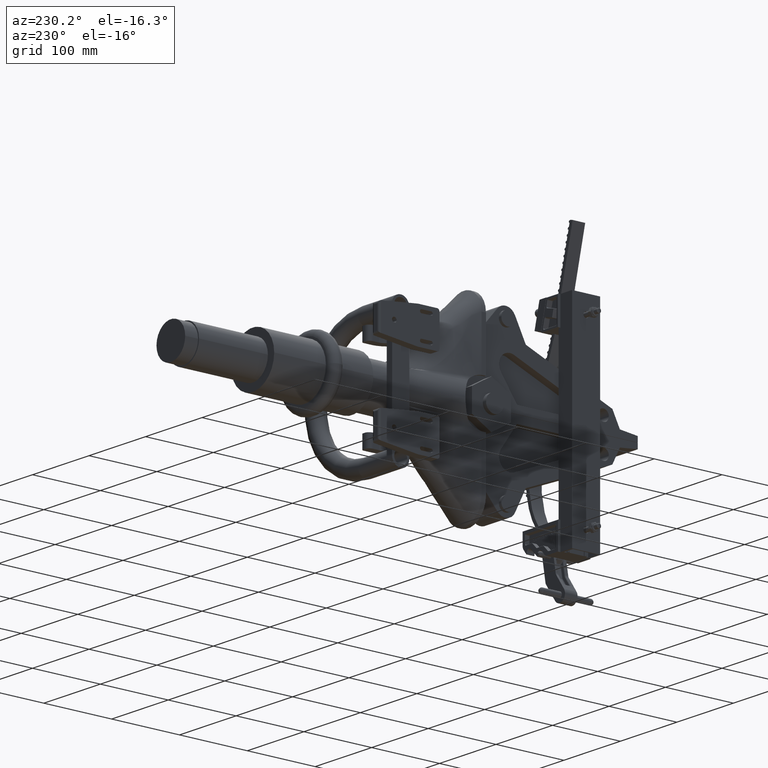
[diagram: clean part render]
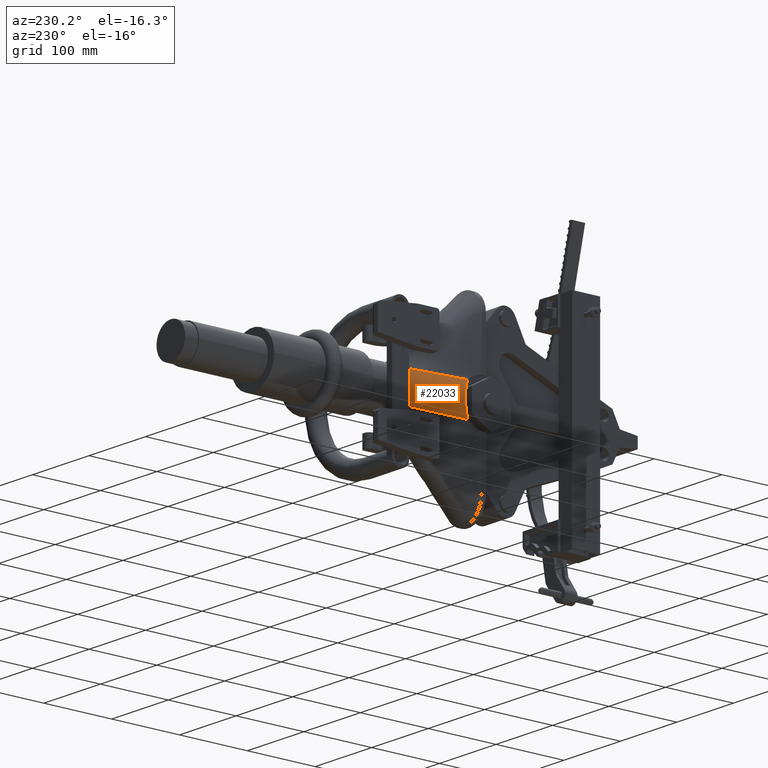
[diagram: same view with one face highlighted and labeled with its STEP entity id]
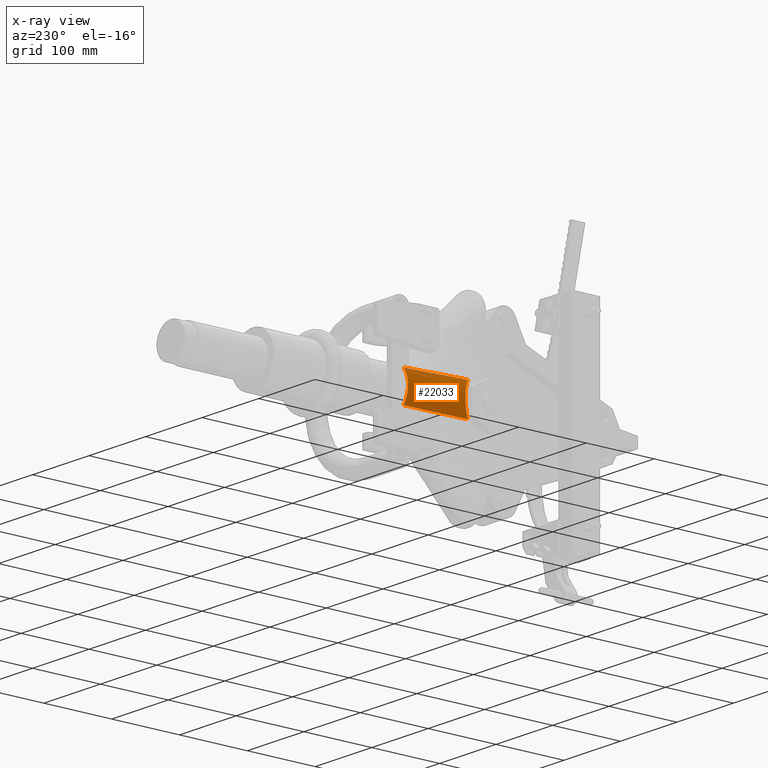
[diagram: x-ray of the same camera — body ghosted, the highlighted face saturated]
A machine part, auxiliary view. The second image highlights one B-rep face of the part: STEP entity #22033.
The next image is the same camera in x-ray: the body ghosted, the highlighted face saturated — about 0% of this face is hidden behind the body in this view.
In plain terms, the highlighted face is a freeform B-spline surface patch.
Its self-contained STEP definition (entity closure, byte-faithful):
#6969 = B_SPLINE_SURFACE_WITH_KNOTS ( 'NONE', 3, 3, ( 
 ( #40463, #40258, #40261, #40465, #40466, #40467, #40468 ),
 ( #40469, #40470, #40471, #40472, #40473, #40474, #40475 ),
 ( #40476, #40477, #40478, #40479, #40480, #40481, #40482 ),
 ( #40483, #40484, #40485, #40486, #40487, #40488, #40489 ),
 ( #40490, #40491, #40492, #40493, #40494, #40495, #40496 ),
 ( #40497, #40498, #40499, #40500, #40501, #40502, #40503 ),
 ( #40504, #40505, #40506, #40507, #40508, #40509, #40510 ),
 ( #40511, #40512, #40513, #40514, #40515, #40516, #40517 ),
 ( #40518, #40519, #40520, #40521, #40522, #40523, #40524 ),
 ( #40525, #40526, #40527, #40528, #40529, #40530, #40531 ),
 ( #40532, #40533, #40534, #40535, #40536, #40537, #40538 ) ),
 .UNSPECIFIED., .F., .F., .F.,
 ( 4, 1, 1, 1, 1, 1, 1, 1, 4 ),
 ( 4, 3, 4 ),
 ( 0.0000000000000000000, 0.1250000000000000000, 0.2500000000000000000, 0.3750000000000000000, 0.5000000000000000000, 0.6250000000000000000, 0.7500000000000000000, 0.8750000000000000000, 1.000000000000000000 ),
 ( 0.1814216524969579100, 1.000000000000000000, 1.005140607936201500 ),
 .UNSPECIFIED. ) ;
#7985 = ORIENTED_EDGE ( 'NONE', *, *, #27143, .F. ) ;
#7986 = ORIENTED_EDGE ( 'NONE', *, *, #27140, .T. ) ;
#7987 = ORIENTED_EDGE ( 'NONE', *, *, #26978, .T. ) ;
#7988 = ORIENTED_EDGE ( 'NONE', *, *, #27103, .T. ) ;
#7989 = ORIENTED_EDGE ( 'NONE', *, *, #27145, .T. ) ;
#11544 = CARTESIAN_POINT ( 'NONE',  ( 1.220404281933973500E-012, -12.62489258679072200, 1.375000000000000000 ) ) ;
#11554 = CARTESIAN_POINT ( 'NONE',  ( -0.9231804549859552500, -16.18500719516051600, 1.280291559779656300 ) ) ;
#11585 = CARTESIAN_POINT ( 'NONE',  ( 0.8785852166543837200, -12.62550000000000100, 1.057692307373164800 ) ) ;
#13195 = FACE_OUTER_BOUND ( 'NONE', #25282, .T. ) ;
#16696 = VERTEX_POINT ( 'NONE', #11544 ) ;
#16706 = VERTEX_POINT ( 'NONE', #11554 ) ;
#16737 = VERTEX_POINT ( 'NONE', #11585 ) ;
#22033 = ADVANCED_FACE ( 'NONE', ( #13195 ), #6969, .T. ) ;
#25282 = EDGE_LOOP ( 'NONE', ( #7985, #7986, #7987, #7988, #7989 ) ) ;
#25548 = CARTESIAN_POINT ( 'NONE',  ( 0.8785852166543837200, -12.62550000000000100, 1.057692307373164800 ) ) ;
#25553 = CARTESIAN_POINT ( 'NONE',  ( 0.8477507870135311300, -12.62550000025478200, 1.083305308297511000 ) ) ;
#25554 = CARTESIAN_POINT ( 'NONE',  ( 0.8160276594466014900, -12.62564139063792400, 1.107382431430984600 ) ) ;
#25555 = CARTESIAN_POINT ( 'NONE',  ( 0.7508617619780440000, -12.62577721259891700, 1.152563926566819500 ) ) ;
#25556 = CARTESIAN_POINT ( 'NONE',  ( 0.7174188533534743300, -12.62577271187110600, 1.173668060830290700 ) ) ;
#25557 = CARTESIAN_POINT ( 'NONE',  ( 0.6488302444160015700, -12.62563708757778100, 1.212932744257166200 ) ) ;
#25558 = CARTESIAN_POINT ( 'NONE',  ( 0.6136845528767174200, -12.62550494751471000, 1.231093306635229400 ) ) ;
#25559 = CARTESIAN_POINT ( 'NONE',  ( 0.5596729874331206600, -12.62526774091328900, 1.256099025617835700 ) ) ;
#25560 = CARTESIAN_POINT ( 'NONE',  ( 0.5414533259080279700, -12.62518575052285600, 1.264061229901682500 ) ) ;
#25561 = CARTESIAN_POINT ( 'NONE',  ( 0.5045759412440483600, -12.62506979361078400, 1.279228523992137300 ) ) ;
#25562 = CARTESIAN_POINT ( 'NONE',  ( 0.4858776092910080400, -12.62503588230959300, 1.286447986284686700 ) ) ;
#25563 = CARTESIAN_POINT ( 'NONE',  ( 0.4294117473076053400, -12.62513295511932500, 1.306840633657870400 ) ) ;
#25564 = CARTESIAN_POINT ( 'NONE',  ( 0.3914391801599486600, -12.62544579207687300, 1.318700171072509900 ) ) ;
#25565 = CARTESIAN_POINT ( 'NONE',  ( 0.3148565645033442100, -12.62590157320970100, 1.339051946990896600 ) ) ;
#25566 = CARTESIAN_POINT ( 'NONE',  ( 0.2762464698969011600, -12.62604555650760000, 1.347543943501894800 ) ) ;
#25567 = CARTESIAN_POINT ( 'NONE',  ( 0.1983936143702661200, -12.62597066352215500, 1.361185793922431400 ) ) ;
#25568 = CARTESIAN_POINT ( 'NONE',  ( 0.1591508622494361100, -12.62575158551406500, 1.366335694020155200 ) ) ;
#25569 = CARTESIAN_POINT ( 'NONE',  ( 0.09980514348663288600, -12.62534767766002700, 1.371516766124527800 ) ) ;
#25570 = CARTESIAN_POINT ( 'NONE',  ( 0.07994285958529091800, -12.62520408052630700, 1.372819237812000100 ) ) ;
#25571 = CARTESIAN_POINT ( 'NONE',  ( 0.04005493170798310500, -12.62497645337592700, 1.374561429311641300 ) ) ;
#25572 = CARTESIAN_POINT ( 'NONE',  ( 0.01998300535973331100, -12.62489258679073400, 1.374999999999983300 ) ) ;
#25573 = CARTESIAN_POINT ( 'NONE',  ( 1.220404281933973500E-012, -12.62489258679072200, 1.375000000000000000 ) ) ;
#25764 = CARTESIAN_POINT ( 'NONE',  ( 1.220404281933973500E-012, -12.62489258679072200, 1.375000000000000000 ) ) ;
#25787 = CARTESIAN_POINT ( 'NONE',  ( -0.04003107011063537800, -12.62489258679072400, 1.375000000000036200 ) ) ;
#25788 = CARTESIAN_POINT ( 'NONE',  ( -0.07979784336991256600, -12.62521137445003000, 1.373255323782395500 ) ) ;
#25789 = CARTESIAN_POINT ( 'NONE',  ( -0.1588177907840958000, -12.62574945090780400, 1.366372858861606600 ) ) ;
#25790 = CARTESIAN_POINT ( 'NONE',  ( -0.1980709313713126300, -12.62596965185556300, 1.361234851896180100 ) ) ;
#25791 = CARTESIAN_POINT ( 'NONE',  ( -0.2760663717884438400, -12.62604608000198400, 1.347582937795918100 ) ) ;
#25792 = CARTESIAN_POINT ( 'NONE',  ( -0.3148086827883666000, -12.62590202454980600, 1.339069103369835200 ) ) ;
#25793 = CARTESIAN_POINT ( 'NONE',  ( -0.3725322759292319400, -12.62555823279063100, 1.323722439176977700 ) ) ;
#25794 = CARTESIAN_POINT ( 'NONE',  ( -0.3917084017349561400, -12.62542596479994100, 1.318176965035166500 ) ) ;
#25795 = CARTESIAN_POINT ( 'NONE',  ( -0.4299282034530111900, -12.62519549760516400, 1.306211209190436500 ) ) ;
#25796 = CARTESIAN_POINT ( 'NONE',  ( -0.4489770449229369400, -12.62509768407171700, 1.299786006995144100 ) ) ;
#25797 = CARTESIAN_POINT ( 'NONE',  ( -0.5053314584097841100, -12.62500580358355200, 1.279398812151201700 ) ) ;
#25798 = CARTESIAN_POINT ( 'NONE',  ( -0.5420478307217133600, -12.62519034967179000, 1.264267977417391100 ) ) ;
#25799 = CARTESIAN_POINT ( 'NONE',  ( -0.6138251921895809800, -12.62550555060033600, 1.231019091219384800 ) ) ;
#25800 = CARTESIAN_POINT ( 'NONE',  ( -0.6488860601770867200, -12.62563719862746000, 1.212900822319136400 ) ) ;
#25801 = CARTESIAN_POINT ( 'NONE',  ( -0.7173646502373528500, -12.62577260401019600, 1.173699059582318700 ) ) ;
#25802 = CARTESIAN_POINT ( 'NONE',  ( -0.7507823937849210600, -12.62577728802745400, 1.152615605629189200 ) ) ;
#25803 = CARTESIAN_POINT ( 'NONE',  ( -0.8159503198404968200, -12.62564164161138300, 1.107439394598887000 ) ) ;
#25804 = CARTESIAN_POINT ( 'NONE',  ( -0.8477006700685663100, -12.62550000044320700, 1.083346938572607800 ) ) ;
#25805 = CARTESIAN_POINT ( 'NONE',  ( -0.8785852169374418500, -12.62550000000000100, 1.057692307138038900 ) ) ;
#25937 = CARTESIAN_POINT ( 'NONE',  ( 0.9231804549859538000, -16.18500719516051600, 1.280291559779657600 ) ) ;
#25953 = CARTESIAN_POINT ( 'NONE',  ( 0.9231804549859538000, -16.18500719516051600, 1.280291559779657600 ) ) ;
#25954 = CARTESIAN_POINT ( 'NONE',  ( 0.9146680611093301900, -15.88821024667005100, 1.265517660781323700 ) ) ;
#25955 = CARTESIAN_POINT ( 'NONE',  ( 0.9065403585586617700, -15.59141783278990100, 1.250464512425404400 ) ) ;
#25956 = CARTESIAN_POINT ( 'NONE',  ( 0.8916801048300048200, -14.99785062392669300, 1.219322844048359000 ) ) ;
#25957 = CARTESIAN_POINT ( 'NONE',  ( 0.8849234490370229100, -14.70106912320637000, 1.203255057614465800 ) ) ;
#25958 = CARTESIAN_POINT ( 'NONE',  ( 0.8741597327377614900, -14.10759233167302700, 1.169012950404908000 ) ) ;
#25959 = CARTESIAN_POINT ( 'NONE',  ( 0.8700898654464889200, -13.81087156862776800, 1.150902442291134000 ) ) ;
#25960 = CARTESIAN_POINT ( 'NONE',  ( 0.8685209036286967200, -13.36601297284045300, 1.120041708863345600 ) ) ;
#25961 = CARTESIAN_POINT ( 'NONE',  ( 0.8687763728005083500, -13.21776682449254600, 1.109119662724301200 ) ) ;
#25962 = CARTESIAN_POINT ( 'NONE',  ( 0.8716427666466669600, -12.92144422562158600, 1.085233442527570000 ) ) ;
#25963 = CARTESIAN_POINT ( 'NONE',  ( 0.8742637598029120400, -12.77336365141384000, 1.072267391470826900 ) ) ;
#25964 = CARTESIAN_POINT ( 'NONE',  ( 0.8785852166543837200, -12.62550000000000100, 1.057692307373164800 ) ) ;
#25965 = CARTESIAN_POINT ( 'NONE',  ( -0.8785852169374418500, -12.62550000000000100, 1.057692307138038900 ) ) ;
#25966 = CARTESIAN_POINT ( 'NONE',  ( 0.8658566129816339700, -16.12839909399539500, 1.317635039673407600 ) ) ;
#25967 = CARTESIAN_POINT ( 'NONE',  ( 0.8033435416190347600, -16.07693551255698600, 1.353663658125053000 ) ) ;
#25968 = CARTESIAN_POINT ( 'NONE',  ( 0.7004979700746246700, -16.00755402959553600, 1.403659947260243100 ) ) ;
#25969 = CARTESIAN_POINT ( 'NONE',  ( 0.6644997479005829700, -15.98565440321394600, 1.419723162110736200 ) ) ;
#25970 = CARTESIAN_POINT ( 'NONE',  ( 0.5905669625448420900, -15.94546104667372300, 1.449560805454926700 ) ) ;
#25971 = CARTESIAN_POINT ( 'NONE',  ( 0.5525434510321585200, -15.92708349944155600, 1.463393496821007800 ) ) ;
#25972 = CARTESIAN_POINT ( 'NONE',  ( 0.4742592900347742400, -15.89385096189091900, 1.488607406842891200 ) ) ;
#25973 = CARTESIAN_POINT ( 'NONE',  ( 0.4339999323476926300, -15.87899567574387300, 1.499992341298605100 ) ) ;
#25974 = CARTESIAN_POINT ( 'NONE',  ( 0.3717936875785694500, -15.85952140558850100, 1.515008713712932900 ) ) ;
#25975 = CARTESIAN_POINT ( 'NONE',  ( 0.3507547484741269600, -15.85349917827310600, 1.519670017539577600 ) ) ;
#25976 = CARTESIAN_POINT ( 'NONE',  ( 0.3080368219379377400, -15.84243605414957300, 1.528256216129937100 ) ) ;
#25977 = CARTESIAN_POINT ( 'NONE',  ( 0.2864985109640529900, -15.83743426099666300, 1.532150746042479300 ) ) ;
#25978 = CARTESIAN_POINT ( 'NONE',  ( 0.1786069521997000800, -15.81522324074200700, 1.549476973259045400 ) ) ;
#25979 = CARTESIAN_POINT ( 'NONE',  ( 0.09097093996180703700, -15.80614016677957100, 1.556668975124613900 ) ) ;
#25980 = CARTESIAN_POINT ( 'NONE',  ( -0.02029793277741463400, -15.80597452846754100, 1.556799929945446700 ) ) ;
#25981 = CARTESIAN_POINT ( 'NONE',  ( -0.04263869740503958800, -15.80650624367589300, 1.556379402411046200 ) ) ;
#25982 = CARTESIAN_POINT ( 'NONE',  ( -0.08749864825572291300, -15.80873066428212100, 1.554625255778513600 ) ) ;
#25983 = CARTESIAN_POINT ( 'NONE',  ( -0.1099065991930627700, -15.81042163833981800, 1.553293041787882700 ) ) ;
#25984 = CARTESIAN_POINT ( 'NONE',  ( -0.1764131804194847800, -15.81714126537429600, 1.548010719595738700 ) ) ;
#25985 = CARTESIAN_POINT ( 'NONE',  ( -0.2200642773403716800, -15.82382384768031400, 1.542768725109574100 ) ) ;
#25986 = CARTESIAN_POINT ( 'NONE',  ( -0.3060634157108820800, -15.84139874323257400, 1.529057338043561700 ) ) ;
#25987 = CARTESIAN_POINT ( 'NONE',  ( -0.3484111223176615800, -15.85229155269268700, 1.520586363359860200 ) ) ;
#25988 = CARTESIAN_POINT ( 'NONE',  ( -0.4109812697291847500, -15.87174811126905600, 1.505579568833681900 ) ) ;
#25989 = CARTESIAN_POINT ( 'NONE',  ( -0.4317174870750125100, -15.87877121859865400, 1.500180410878650100 ) ) ;
#25990 = CARTESIAN_POINT ( 'NONE',  ( -0.4724084265618333500, -15.89368234774026200, 1.488766722041970200 ) ) ;
#25991 = CARTESIAN_POINT ( 'NONE',  ( -0.4924175851744375700, -15.90158505244793100, 1.482740775067500300 ) ) ;
#25993 = CARTESIAN_POINT ( 'NONE',  ( -0.5514839082685566400, -15.92658479914524200, 1.463769367909798100 ) ) ;
#25995 = CARTESIAN_POINT ( 'NONE',  ( -0.5895818684536487900, -15.94496901683421600, 1.449929689909202200 ) ) ;
#25996 = CARTESIAN_POINT ( 'NONE',  ( -0.6634119297596197100, -15.98502070509449700, 1.420190065238521800 ) ) ;
#25998 = CARTESIAN_POINT ( 'NONE',  ( -0.6991888369034756600, -16.00671933451771900, 1.404267181700400400 ) ) ;
#26000 = CARTESIAN_POINT ( 'NONE',  ( -0.8028555661914547100, -16.07651152285171000, 1.353957933608399100 ) ) ;
#26001 = CARTESIAN_POINT ( 'NONE',  ( -0.8656801385619760100, -16.12822482302100700, 1.317750003512393200 ) ) ;
#26003 = CARTESIAN_POINT ( 'NONE',  ( -0.9231804549859552500, -16.18500719516051600, 1.280291559779656300 ) ) ;
#26007 = CARTESIAN_POINT ( 'NONE',  ( -0.8742638484517248900, -12.77336061060735500, 1.072267091919434800 ) ) ;
#26009 = CARTESIAN_POINT ( 'NONE',  ( -0.8716430244856578900, -12.92142640965947300, 1.085231931423468600 ) ) ;
#26011 = CARTESIAN_POINT ( 'NONE',  ( -0.8687764236077838400, -13.21775273411434500, 1.109118601887333800 ) ) ;
#26012 = CARTESIAN_POINT ( 'NONE',  ( -0.8685209013857091400, -13.36599884340101400, 1.120040689357219900 ) ) ;
#26014 = CARTESIAN_POINT ( 'NONE',  ( -0.8700897282808092200, -13.81085966220565300, 1.150901694950538600 ) ) ;
#26016 = CARTESIAN_POINT ( 'NONE',  ( -0.8741595724578323800, -14.10758191348118600, 1.169012327172515900 ) ) ;
#26018 = CARTESIAN_POINT ( 'NONE',  ( -0.8849232853737495400, -14.70106168016143200, 1.203254650298081200 ) ) ;
#26019 = CARTESIAN_POINT ( 'NONE',  ( -0.8916799629645197900, -14.99784466936574700, 1.219322526271213700 ) ) ;
#26021 = CARTESIAN_POINT ( 'NONE',  ( -0.9065402768076681300, -15.59141485537186100, 1.250464361583712800 ) ) ;
#26023 = CARTESIAN_POINT ( 'NONE',  ( -0.9146680184112622200, -15.88820875793995700, 1.265517586675614500 ) ) ;
#26024 = CARTESIAN_POINT ( 'NONE',  ( -0.9231804549859552500, -16.18500719516051600, 1.280291559779656300 ) ) ;
#26978 = EDGE_CURVE ( 'NONE', #16737, #16696, #44101, .T. ) ;
#27103 = EDGE_CURVE ( 'NONE', #16696, #37473, #44105, .T. ) ;
#27140 = EDGE_CURVE ( 'NONE', #42235, #16737, #44113, .T. ) ;
#27143 = EDGE_CURVE ( 'NONE', #42235, #16706, #44114, .T. ) ;
#27145 = EDGE_CURVE ( 'NONE', #37473, #16706, #44115, .T. ) ;
#34667 = CARTESIAN_POINT ( 'NONE',  ( -0.8785852169374418500, -12.62550000000000100, 1.057692307138038900 ) ) ;
#34750 = CARTESIAN_POINT ( 'NONE',  ( 0.9231804549859538000, -16.18500719516051600, 1.280291559779657600 ) ) ;
#37473 = VERTEX_POINT ( 'NONE', #34667 ) ;
#40258 = CARTESIAN_POINT ( 'NONE',  ( -0.9657598628732155800, -15.01274732076803900, 1.162638249679878200 ) ) ;
#40261 = CARTESIAN_POINT ( 'NONE',  ( -0.9221725395716977600, -13.81912366038402200, 1.110165278686093400 ) ) ;
#40463 = CARTESIAN_POINT ( 'NONE',  ( -1.009347186174733600, -16.20637098115206200, 1.215111220673663200 ) ) ;
#40465 = CARTESIAN_POINT ( 'NONE',  ( -0.8785852162701799400, -12.62550000000000100, 1.057692307692308400 ) ) ;
#40466 = CARTESIAN_POINT ( 'NONE',  ( -0.8783114912922775900, -12.61800413686103000, 1.057362781542551900 ) ) ;
#40467 = CARTESIAN_POINT ( 'NONE',  ( -0.8780377663143752500, -12.61050827372206000, 1.057033255392795200 ) ) ;
#40468 = CARTESIAN_POINT ( 'NONE',  ( -0.8777640413364730100, -12.60301241058308900, 1.056703729243038800 ) ) ;
#40469 = CARTESIAN_POINT ( 'NONE',  ( -0.9391583215952528100, -16.20637098115206200, 1.273414470416366800 ) ) ;
#40470 = CARTESIAN_POINT ( 'NONE',  ( -0.8986020115808346400, -15.01274732076803900, 1.218423750692637600 ) ) ;
#40471 = CARTESIAN_POINT ( 'NONE',  ( -0.8580457015664162400, -13.81912366038402200, 1.163433030968908300 ) ) ;
#40472 = CARTESIAN_POINT ( 'NONE',  ( -0.8174893915519981800, -12.62550000000000100, 1.108442311245179100 ) ) ;
#40473 = CARTESIAN_POINT ( 'NONE',  ( -0.8172347011002422100, -12.61800413686103000, 1.108096973830511800 ) ) ;
#40474 = CARTESIAN_POINT ( 'NONE',  ( -0.8169800106484862400, -12.61050827372206000, 1.107751636415844600 ) ) ;
#40475 = CARTESIAN_POINT ( 'NONE',  ( -0.8167253201967302800, -12.60301241058308900, 1.107406299001177500 ) ) ;
#40476 = CARTESIAN_POINT ( 'NONE',  ( -0.7886521782805440100, -16.20637098115203800, 1.377822286409625200 ) ) ;
#40477 = CARTESIAN_POINT ( 'NONE',  ( -0.7545903753331352200, -15.01274732076803200, 1.318311990713590700 ) ) ;
#40478 = CARTESIAN_POINT ( 'NONE',  ( -0.7205285723857261000, -13.81912366038402800, 1.258801695017555800 ) ) ;
#40479 = CARTESIAN_POINT ( 'NONE',  ( -0.6864667694383170800, -12.62550000000001800, 1.199291399321521100 ) ) ;
#40480 = CARTESIAN_POINT ( 'NONE',  ( -0.6862528639824899700, -12.61800413686104800, 1.198917679323583400 ) ) ;
#40481 = CARTESIAN_POINT ( 'NONE',  ( -0.6860389585266629700, -12.61050827372207700, 1.198543959325645500 ) ) ;
#40482 = CARTESIAN_POINT ( 'NONE',  ( -0.6858250530708359700, -12.60301241058310700, 1.198170239327707600 ) ) ;
#40483 = CARTESIAN_POINT ( 'NONE',  ( -0.5392755564040087000, -16.20637098115208700, 1.493185794188727000 ) ) ;
#40484 = CARTESIAN_POINT ( 'NONE',  ( -0.5159945540322292700, -15.01274732076805500, 1.428721862255476300 ) ) ;
#40485 = CARTESIAN_POINT ( 'NONE',  ( -0.4927135516604498900, -13.81912366038402200, 1.364257930322225500 ) ) ;
#40486 = CARTESIAN_POINT ( 'NONE',  ( -0.4694325492886705600, -12.62549999999999200, 1.299793998388974800 ) ) ;
#40487 = CARTESIAN_POINT ( 'NONE',  ( -0.4692863464164345700, -12.61800413686102100, 1.299389169943285100 ) ) ;
#40488 = CARTESIAN_POINT ( 'NONE',  ( -0.4691401435441987000, -12.61050827372205100, 1.298984341497595500 ) ) ;
#40489 = CARTESIAN_POINT ( 'NONE',  ( -0.4689939406719627100, -12.60301241058308000, 1.298579513051905800 ) ) ;
#40490 = CARTESIAN_POINT ( 'NONE',  ( -0.2737321860487902900, -16.20637098115204800, 1.563780366402054900 ) ) ;
#40491 = CARTESIAN_POINT ( 'NONE',  ( -0.2619056858802846800, -15.01274732076803200, 1.496227386739130900 ) ) ;
#40492 = CARTESIAN_POINT ( 'NONE',  ( -0.2500791857117790100, -13.81912366038401500, 1.428674407076206500 ) ) ;
#40493 = CARTESIAN_POINT ( 'NONE',  ( -0.2382526855432733900, -12.62550000000000100, 1.361121427413282300 ) ) ;
#40494 = CARTESIAN_POINT ( 'NONE',  ( -0.2381784160481062700, -12.61800413686103000, 1.360697199989690600 ) ) ;
#40495 = CARTESIAN_POINT ( 'NONE',  ( -0.2381041465529392700, -12.61050827372206000, 1.360272972566098700 ) ) ;
#40496 = CARTESIAN_POINT ( 'NONE',  ( -0.2380298770577722600, -12.60301241058308900, 1.359848745142507000 ) ) ;
#40497 = CARTESIAN_POINT ( 'NONE',  ( 2.978959034190239100E-019, -16.20637098115205500, 1.587588560751680400 ) ) ;
#40498 = CARTESIAN_POINT ( 'NONE',  ( -2.046900022558737300E-016, -15.01274732076804400, 1.519056156972670200 ) ) ;
#40499 = CARTESIAN_POINT ( 'NONE',  ( -4.096779004151665200E-016, -13.81912366038403100, 1.450523753193660100 ) ) ;
#40500 = CARTESIAN_POINT ( 'NONE',  ( -6.146657985744592700E-016, -12.62550000000001700, 1.381991349414649900 ) ) ;
#40501 = CARTESIAN_POINT ( 'NONE',  ( -6.159531065264924100E-016, -12.61800413686104600, 1.381560971284287600 ) ) ;
#40502 = CARTESIAN_POINT ( 'NONE',  ( -6.172404144785257400E-016, -12.61050827372207400, 1.381130593153925500 ) ) ;
#40503 = CARTESIAN_POINT ( 'NONE',  ( -6.185277224305589700E-016, -12.60301241058310300, 1.380700215023563000 ) ) ;
#40504 = CARTESIAN_POINT ( 'NONE',  ( 0.2737321860487902400, -16.20637098115207300, 1.563780366402057500 ) ) ;
#40505 = CARTESIAN_POINT ( 'NONE',  ( 0.2619056858802842300, -15.01274732076805000, 1.496227386739132200 ) ) ;
#40506 = CARTESIAN_POINT ( 'NONE',  ( 0.2500791857117783400, -13.81912366038402200, 1.428674407076207000 ) ) ;
#40507 = CARTESIAN_POINT ( 'NONE',  ( 0.2382526855432723600, -12.62549999999999700, 1.361121427413281900 ) ) ;
#40508 = CARTESIAN_POINT ( 'NONE',  ( 0.2381784160481053600, -12.61800413686102700, 1.360697199989690400 ) ) ;
#40509 = CARTESIAN_POINT ( 'NONE',  ( 0.2381041465529383500, -12.61050827372205600, 1.360272972566098200 ) ) ;
#40510 = CARTESIAN_POINT ( 'NONE',  ( 0.2380298770577713200, -12.60301241058308500, 1.359848745142506300 ) ) ;
#40511 = CARTESIAN_POINT ( 'NONE',  ( 0.5392755564040084800, -16.20637098115204800, 1.493185794188724500 ) ) ;
#40512 = CARTESIAN_POINT ( 'NONE',  ( 0.5159945540322289400, -15.01274732076802600, 1.428721862255474700 ) ) ;
#40513 = CARTESIAN_POINT ( 'NONE',  ( 0.4927135516604493300, -13.81912366038400500, 1.364257930322224400 ) ) ;
#40514 = CARTESIAN_POINT ( 'NONE',  ( 0.4694325492886697900, -12.62549999999998600, 1.299793998388974400 ) ) ;
#40515 = CARTESIAN_POINT ( 'NONE',  ( 0.4692863464164337400, -12.61800413686101600, 1.299389169943284900 ) ) ;
#40516 = CARTESIAN_POINT ( 'NONE',  ( 0.4691401435441978600, -12.61050827372204200, 1.298984341497595000 ) ) ;
#40517 = CARTESIAN_POINT ( 'NONE',  ( 0.4689939406719619300, -12.60301241058307100, 1.298579513051905300 ) ) ;
#40518 = CARTESIAN_POINT ( 'NONE',  ( 0.7886521782805440100, -16.20637098115206200, 1.377822286409627000 ) ) ;
#40519 = CARTESIAN_POINT ( 'NONE',  ( 0.7545903753331345600, -15.01274732076804600, 1.318311990713591800 ) ) ;
#40520 = CARTESIAN_POINT ( 'NONE',  ( 0.7205285723857252100, -13.81912366038403300, 1.258801695017557100 ) ) ;
#40521 = CARTESIAN_POINT ( 'NONE',  ( 0.6864667694383158600, -12.62550000000001800, 1.199291399321522400 ) ) ;
#40522 = CARTESIAN_POINT ( 'NONE',  ( 0.6862528639824887500, -12.61800413686104800, 1.198917679323584700 ) ) ;
#40523 = CARTESIAN_POINT ( 'NONE',  ( 0.6860389585266617500, -12.61050827372207700, 1.198543959325646800 ) ) ;
#40524 = CARTESIAN_POINT ( 'NONE',  ( 0.6858250530708346300, -12.60301241058310700, 1.198170239327709200 ) ) ;
#40525 = CARTESIAN_POINT ( 'NONE',  ( 0.9391583215952524800, -16.20637098115206200, 1.273414470416367500 ) ) ;
#40526 = CARTESIAN_POINT ( 'NONE',  ( 0.8986020115808341900, -15.01274732076803900, 1.218423750692637900 ) ) ;
#40527 = CARTESIAN_POINT ( 'NONE',  ( 0.8580457015664161300, -13.81912366038402200, 1.163433030968908500 ) ) ;
#40528 = CARTESIAN_POINT ( 'NONE',  ( 0.8174893915519979600, -12.62550000000000100, 1.108442311245179100 ) ) ;
#40529 = CARTESIAN_POINT ( 'NONE',  ( 0.8172347011002421000, -12.61800413686103000, 1.108096973830512000 ) ) ;
#40530 = CARTESIAN_POINT ( 'NONE',  ( 0.8169800106484862400, -12.61050827372206000, 1.107751636415845100 ) ) ;
#40531 = CARTESIAN_POINT ( 'NONE',  ( 0.8167253201967302800, -12.60301241058308900, 1.107406299001177900 ) ) ;
#40532 = CARTESIAN_POINT ( 'NONE',  ( 1.009347186174733400, -16.20637098115206200, 1.215111220673663400 ) ) ;
#40533 = CARTESIAN_POINT ( 'NONE',  ( 0.9657598628732154700, -15.01274732076803900, 1.162638249679878600 ) ) ;
#40534 = CARTESIAN_POINT ( 'NONE',  ( 0.9221725395716975400, -13.81912366038402200, 1.110165278686093600 ) ) ;
#40535 = CARTESIAN_POINT ( 'NONE',  ( 0.8785852162701798300, -12.62550000000000100, 1.057692307692308600 ) ) ;
#40536 = CARTESIAN_POINT ( 'NONE',  ( 0.8783114912922775900, -12.61800413686103000, 1.057362781542551900 ) ) ;
#40537 = CARTESIAN_POINT ( 'NONE',  ( 0.8780377663143752500, -12.61050827372206000, 1.057033255392795700 ) ) ;
#40538 = CARTESIAN_POINT ( 'NONE',  ( 0.8777640413364730100, -12.60301241058308900, 1.056703729243039000 ) ) ;
#42235 = VERTEX_POINT ( 'NONE', #34750 ) ;
#44101 = B_SPLINE_CURVE_WITH_KNOTS ( 'NONE', 3,
 ( #25548, #25553, #25554, #25555, #25556, #25557, #25558, #25559, #25560, #25561, #25562, #25563, #25564, #25565, #25566, #25567, #25568, #25569, #25570, #25571, #25572, #25573 ),
 .UNSPECIFIED., .F., .F.,
 ( 4, 2, 2, 2, 2, 2, 2, 2, 2, 2, 4 ),
 ( 4.906538933386797400E-018, 0.003011105015229549900, 0.006022210030459095400, 0.009033315045688640500, 0.01053886755330341700, 0.01204442006091819600, 0.01505552507614775300, 0.01806663009137730500, 0.02107773510660686200, 0.02258328761422163600, 0.02408884012183641300 ),
 .UNSPECIFIED. ) ;
#44105 = B_SPLINE_CURVE_WITH_KNOTS ( 'NONE', 3,
 ( #25764, #25787, #25788, #25789, #25790, #25791, #25792, #25793, #25794, #25795, #25796, #25797, #25798, #25799, #25800, #25801, #25802, #25803, #25804, #25805 ),
 .UNSPECIFIED., .F., .F.,
 ( 4, 2, 2, 2, 2, 2, 2, 2, 2, 4 ),
 ( 0.02408884012183641300, 0.02710484681893377300, 0.03012085351603113100, 0.03313686021312849100, 0.03464486356167716800, 0.03615286691022584500, 0.03916887360732321200, 0.04218488030442056600, 0.04520088700151793400, 0.04821689369861529400 ),
 .UNSPECIFIED. ) ;
#44113 = B_SPLINE_CURVE_WITH_KNOTS ( 'NONE', 3,
 ( #25937, #25954, #25955, #25956, #25957, #25958, #25959, #25960, #25961, #25962, #25963, #25964 ),
 .UNSPECIFIED., .F., .F.,
 ( 4, 2, 2, 2, 2, 4 ),
 ( 0.02073480249522895900, 0.04338800902660886600, 0.06604121555798878100, 0.08869442208936867400, 0.1000210253550587200, 0.1113476286207487600 ),
 .UNSPECIFIED. ) ;
#44114 = B_SPLINE_CURVE_WITH_KNOTS ( 'NONE', 3,
 ( #25953, #25966, #25967, #25968, #25969, #25970, #25971, #25972, #25973, #25974, #25975, #25976, #25977, #25978, #25979, #25980, #25981, #25982, #25983, #25984, #25985, #25986, #25987, #25988, #25989, #25990, #25991, #25993, #25995, #25996, #25998, #26000, #26001, #26003 ),
 .UNSPECIFIED., .F., .F.,
 ( 4, 2, 2, 2, 2, 2, 2, 2, 2, 2, 2, 2, 2, 2, 2, 2, 4 ),
 ( 0.003672294018204098400, 0.01042422885425230200, 0.01380019627227645200, 0.01717616369030059900, 0.02055213110832474300, 0.02224011481733682200, 0.02392809852634889700, 0.03068003336239719800, 0.03236801707140927300, 0.03405600078042134900, 0.03743196819844549200, 0.04080793561646964300, 0.04249591932548172500, 0.04418390303449380000, 0.04755987045251802700, 0.05093583787054224700, 0.05768777270659071500 ),
 .UNSPECIFIED. ) ;
#44115 = B_SPLINE_CURVE_WITH_KNOTS ( 'NONE', 3,
 ( #25965, #26007, #26009, #26011, #26012, #26014, #26016, #26018, #26019, #26021, #26023, #26024 ),
 .UNSPECIFIED., .F., .F.,
 ( 4, 2, 2, 2, 2, 4 ),
 ( -4.151892420642128400E-005, 0.01128485141102953700, 0.02261122174626549500, 0.04526396241673740600, 0.06791670308720931800, 0.09056944375768123700 ),
 .UNSPECIFIED. ) ;